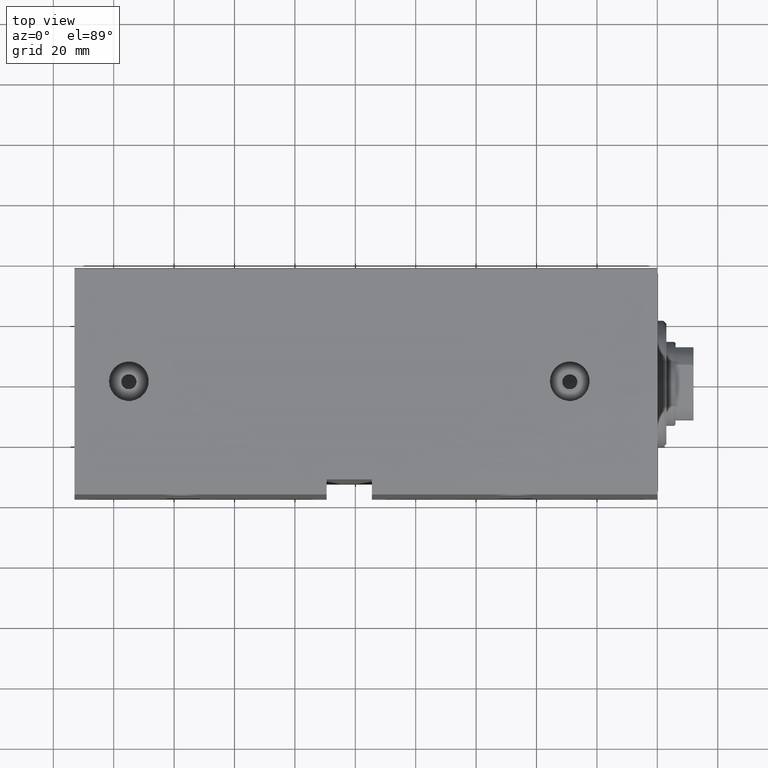
[diagram: clean part render]
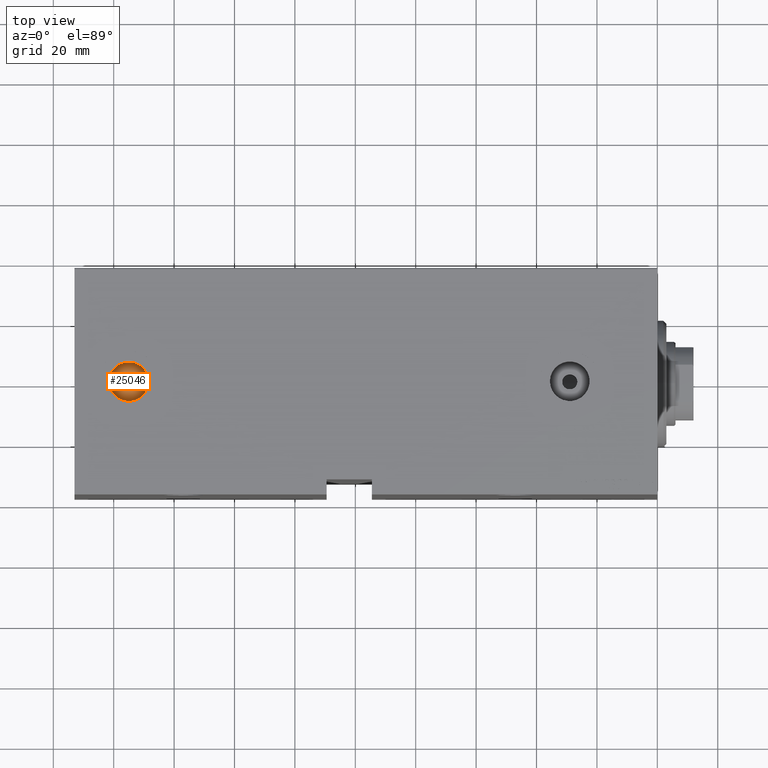
[diagram: same view with one face highlighted and labeled with its STEP entity id]
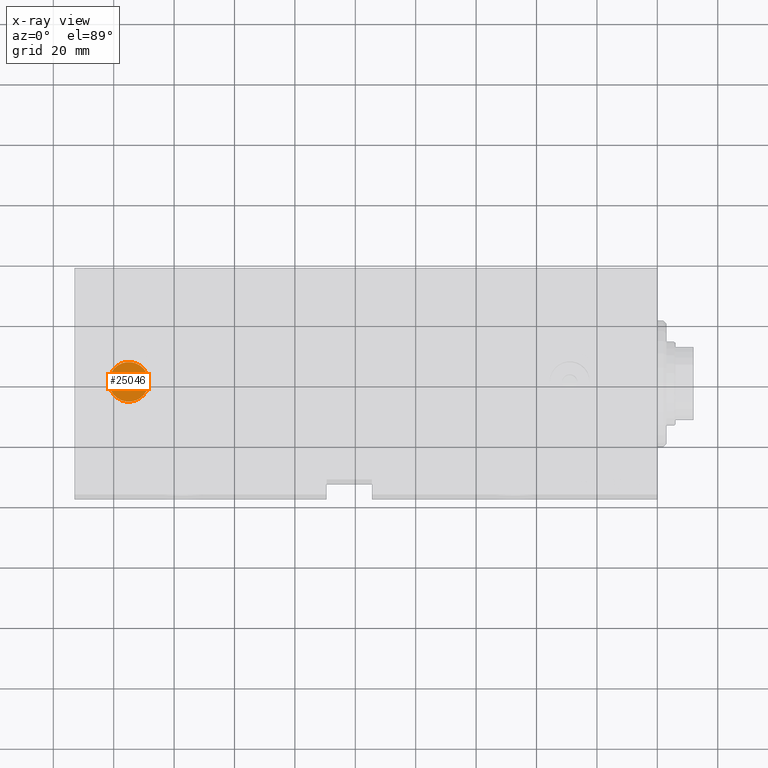
[diagram: x-ray of the same camera — body ghosted, the highlighted face saturated]
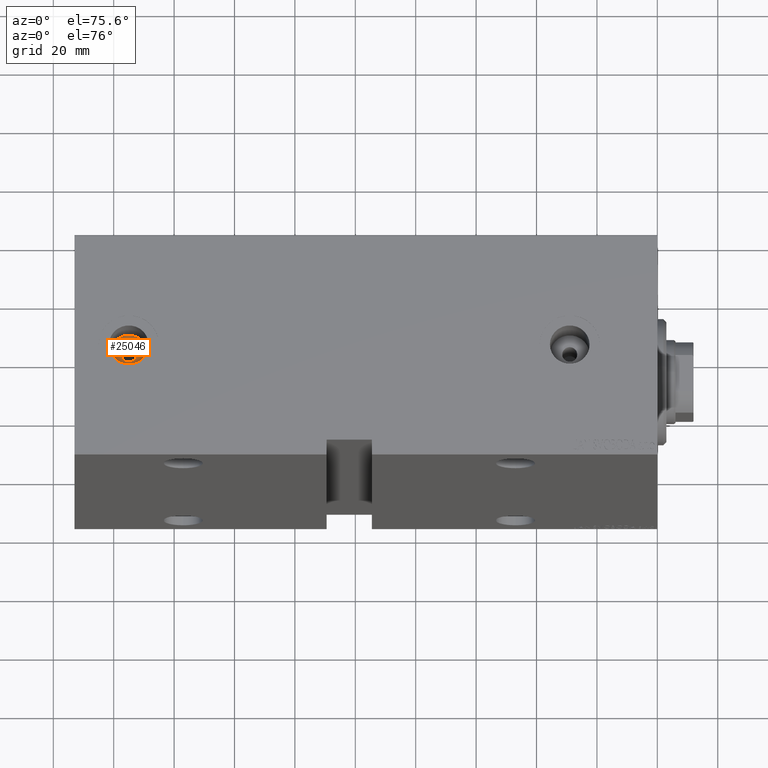
[diagram: same view with one face highlighted and labeled with its STEP entity id]
A machine part, top view. The second image highlights one B-rep face of the part: STEP entity #25046.
The next image is the same camera in x-ray: the body ghosted, the highlighted face saturated — about 0% of this face is hidden behind the body in this view.
A second angle (auxiliary view) of the same face is appended — the face is thin or edge-on in the first view.
In plain terms, the highlighted planar face has unit normal (0, 0, 1).
Its self-contained STEP definition (entity closure, byte-faithful):
#458 = VERTEX_POINT ( 'NONE', #13063 ) ;
#648 = ORIENTED_EDGE ( 'NONE', *, *, #17408, .F. ) ;
#1759 = EDGE_CURVE ( 'NONE', #42954, #458, #29161, .T. ) ;
#2299 = VERTEX_POINT ( 'NONE', #16039 ) ;
#2959 = AXIS2_PLACEMENT_3D ( 'NONE', #35437, #18373, #28250 ) ;
#6247 = CARTESIAN_POINT ( 'NONE',  ( 177.5000000000000568, -9.251858538542973800E-15, 36.74000000000000909 ) ) ;
#6495 = DIRECTION ( 'NONE',  ( 1.000000000000000000, 0.000000000000000000, 0.000000000000000000 ) ) ;
#8193 = VERTEX_POINT ( 'NONE', #36736 ) ;
#8627 = AXIS2_PLACEMENT_3D ( 'NONE', #41952, #28032, #38584 ) ;
#10993 = FACE_BOUND ( 'NONE', #16406, .T. ) ;
#11140 = EDGE_CURVE ( 'NONE', #8193, #2299, #43726, .T. ) ;
#13063 = CARTESIAN_POINT ( 'NONE',  ( 172.5000000000000284, -8.945696838756137507E-15, 36.74000000000000909 ) ) ;
#14147 = CARTESIAN_POINT ( 'NONE',  ( 175.0000000000000568, -9.251858538542973800E-15, 36.74000000000000909 ) ) ;
#15703 = ORIENTED_EDGE ( 'NONE', *, *, #1759, .F. ) ;
#16039 = CARTESIAN_POINT ( 'NONE',  ( 181.5800000000000409, -9.251858538542973800E-15, 36.74000000000000909 ) ) ;
#16406 = EDGE_LOOP ( 'NONE', ( #15703, #648 ) ) ;
#16892 = CARTESIAN_POINT ( 'NONE',  ( 175.0000000000000568, -9.251858538542973800E-15, 36.74000000000000909 ) ) ;
#17408 = EDGE_CURVE ( 'NONE', #458, #42954, #40336, .T. ) ;
#18373 = DIRECTION ( 'NONE',  ( 0.000000000000000000, 0.000000000000000000, 1.000000000000000000 ) ) ;
#18892 = AXIS2_PLACEMENT_3D ( 'NONE', #14147, #33887, #37481 ) ;
#19183 = EDGE_CURVE ( 'NONE', #2299, #8193, #33918, .T. ) ;
#20867 = ORIENTED_EDGE ( 'NONE', *, *, #11140, .T. ) ;
#21286 = AXIS2_PLACEMENT_3D ( 'NONE', #40819, #27555, #6495 ) ;
#25046 = ADVANCED_FACE ( 'NONE', ( #10993, #31629 ), #38146, .T. ) ;
#26565 = ORIENTED_EDGE ( 'NONE', *, *, #19183, .T. ) ;
#26700 = AXIS2_PLACEMENT_3D ( 'NONE', #16892, #34399, #33740 ) ;
#27555 = DIRECTION ( 'NONE',  ( 0.000000000000000000, 0.000000000000000000, 1.000000000000000000 ) ) ;
#28032 = DIRECTION ( 'NONE',  ( 0.000000000000000000, 0.000000000000000000, 1.000000000000000000 ) ) ;
#28250 = DIRECTION ( 'NONE',  ( 1.000000000000000000, 0.000000000000000000, -0.000000000000000000 ) ) ;
#29161 = CIRCLE ( 'NONE', #21286, 2.500000000000002220 ) ;
#31629 = FACE_OUTER_BOUND ( 'NONE', #36508, .T. ) ;
#33740 = DIRECTION ( 'NONE',  ( 1.000000000000000000, 0.000000000000000000, 0.000000000000000000 ) ) ;
#33887 = DIRECTION ( 'NONE',  ( 0.000000000000000000, 0.000000000000000000, 1.000000000000000000 ) ) ;
#33918 = CIRCLE ( 'NONE', #18892, 6.580000000000002736 ) ;
#34399 = DIRECTION ( 'NONE',  ( 0.000000000000000000, 0.000000000000000000, 1.000000000000000000 ) ) ;
#35437 = CARTESIAN_POINT ( 'NONE',  ( 175.0000000000000568, -9.251858538542973800E-15, 36.74000000000000909 ) ) ;
#36508 = EDGE_LOOP ( 'NONE', ( #26565, #20867 ) ) ;
#36736 = CARTESIAN_POINT ( 'NONE',  ( 168.4200000000000443, -8.446040944704011602E-15, 36.74000000000000909 ) ) ;
#37481 = DIRECTION ( 'NONE',  ( 1.000000000000000000, 0.000000000000000000, 0.000000000000000000 ) ) ;
#38146 = PLANE ( 'NONE',  #2959 ) ;
#38584 = DIRECTION ( 'NONE',  ( 1.000000000000000000, 0.000000000000000000, 0.000000000000000000 ) ) ;
#40336 = CIRCLE ( 'NONE', #26700, 2.500000000000002220 ) ;
#40819 = CARTESIAN_POINT ( 'NONE',  ( 175.0000000000000568, -9.251858538542973800E-15, 36.74000000000000909 ) ) ;
#41952 = CARTESIAN_POINT ( 'NONE',  ( 175.0000000000000568, -9.251858538542973800E-15, 36.74000000000000909 ) ) ;
#42954 = VERTEX_POINT ( 'NONE', #6247 ) ;
#43726 = CIRCLE ( 'NONE', #8627, 6.580000000000002736 ) ;